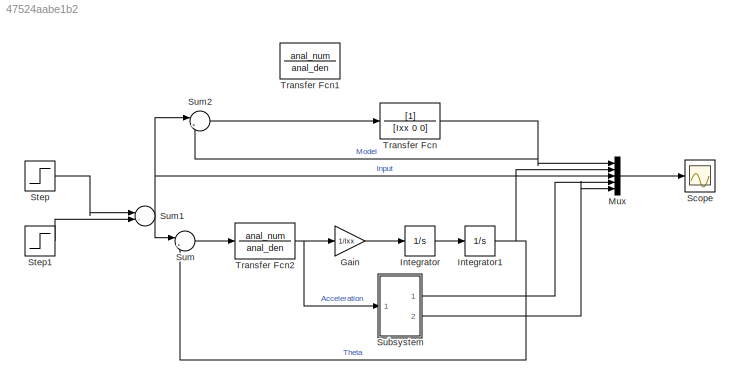
MODEL slx_47524aabe1b2
KIND model
CONFIG AbsTol = auto
CONFIG EnableMultiTasking = off
CONFIG FixedStep = auto
CONFIG MaxStep = 0.02
CONFIG MinStep = 0.01
CONFIG RelTol = 1e-3
CONFIG SampleTimeConstraint = Unconstrained
CONFIG SolverName = VariableStepAuto
CONFIG StartTime = 0.0
CONFIG StopTime = 10
BLOCK [Gain] Gain
  Gain = 1/Ixx
BLOCK [Integrator] Integrator
  Ports = [1, 1]
BLOCK [Integrator] Integrator1
  Ports = [1, 1]
BLOCK [Mux] Mux
  DisplayOption = bar
  Inputs = 5
  Ports = [5, 1]
BLOCK [Scope] Scope
  Floating = off
  NumInputPorts = 1
  Ports = [1]
  ScopeSpecificationString = Simulink.scopes.TimeScopeBlockCfg('CurrentConfiguration', extmgr.ConfigurationSet(extmgr.Configuration('Core','General UI',true),extmgr.Configuration('Core','Source UI',true),extmgr.Configuration('Sources','WiredSimulink',true),extmgr.Configuration('Visuals','Time Domain',true,'SerializedDisplays',{struct('MinYLimReal','-1.64976','MaxYLimReal','1.59732','YLabelReal','','MinYLimMag','0.00000','MaxY...<+1620ch>
BLOCK [Step] Step
  SampleTime = 0
  Time = 5
BLOCK [Step] Step1
  SampleTime = 0
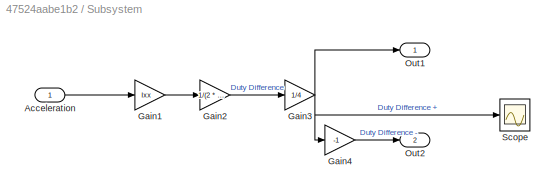
BLOCK [SubSystem] Subsystem
  Ports = [1, 2]
  RequestExecContextInheritance = off
BLOCK [Inport] Subsystem/Acceleration
BLOCK [Gain] Subsystem/Gain1
  Gain = Ixx
BLOCK [Gain] Subsystem/Gain2
  Gain = 1/(2 * 4)
BLOCK [Gain] Subsystem/Gain3
  Gain = 1/4
BLOCK [Gain] Subsystem/Gain4
  Gain = -1
BLOCK [Outport] Subsystem/Out1
BLOCK [Outport] Subsystem/Out2
  Port = 2
BLOCK [Scope] Subsystem/Scope
  Floating = off
  NumInputPorts = 1
  Ports = [1]
  ScopeSpecificationString = Simulink.scopes.TimeScopeBlockCfg('CurrentConfiguration', extmgr.ConfigurationSet(extmgr.Configuration('Core','General UI',true),extmgr.Configuration('Core','Source UI',true),extmgr.Configuration('Sources','WiredSimulink',true,'DataLoggingVariableName','ScopeData1'),extmgr.Configuration('Visuals','Time Domain',true,'SerializedDisplays',{struct('MinYLimReal','-0.00000008','MaxYLimReal','0.00000008'...<+1426ch>
BLOCK [Sum] Sum
  Inputs = |+-
  Ports = [2, 1]
BLOCK [Sum] Sum1
  Inputs = |-+
  Ports = [2, 1]
BLOCK [Sum] Sum2
  Inputs = |+-
  Ports = [2, 1]
BLOCK [TransferFcn] Transfer Fcn
  Denominator = [Ixx 0 0]
BLOCK [TransferFcn] Transfer Fcn1
  Denominator = anal_den
  Numerator = anal_num
BLOCK [TransferFcn] Transfer Fcn2
  Denominator = anal_den
  Numerator = anal_num
LINE Gain:1 -> Integrator:1
NET Integrator1:1 -> Mux:2, Sum:2
LINE Integrator:1 -> Integrator1:1
LINE Mux:1 -> Scope:1
LINE Step1:1 -> Sum1:2
LINE Step:1 -> Sum1:1
LINE Subsystem/Acceleration:1 -> Subsystem/Gain1:1
LINE Subsystem/Gain1:1 -> Subsystem/Gain2:1
LINE Subsystem/Gain2:1 -> Subsystem/Gain3:1
NET Subsystem/Gain3:1 -> Subsystem/Gain4:1, Subsystem/Out1:1, Subsystem/Scope:1
LINE Subsystem/Gain4:1 -> Subsystem/Out2:1
LINE Subsystem:1 -> Mux:4
LINE Subsystem:2 -> Mux:5
NET Sum1:1 -> Mux:3, Sum2:1, Sum:1
LINE Sum2:1 -> Transfer Fcn:1
LINE Sum:1 -> Transfer Fcn2:1
NET Transfer Fcn2:1 -> Gain:1, Subsystem:1
NET Transfer Fcn:1 -> Mux:1, Sum2:2
note: NET lines group one-source signal fan-out (src -> all destinations, sorted); 1:1 wires keep LINE
